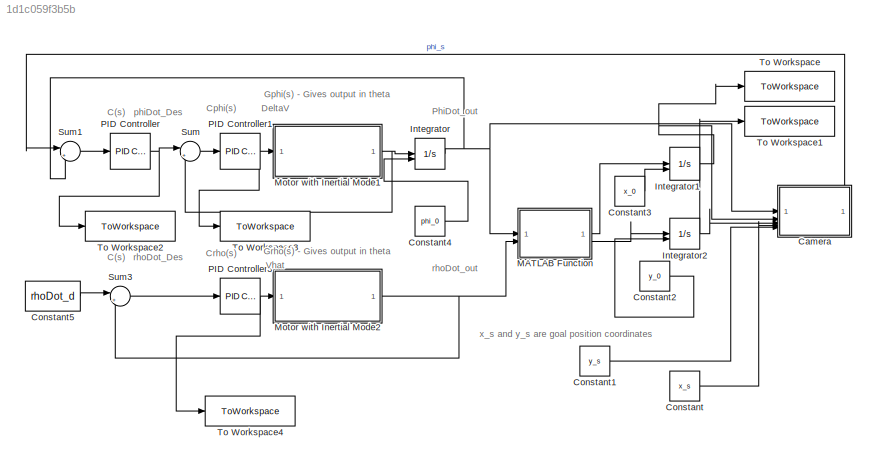
MODEL slx_1d1c059f3b5b
KIND model
CONFIG AbsTol = auto
CONFIG EnableMultiTasking = off
CONFIG FixedStep = auto
CONFIG MaxStep = auto
CONFIG MinStep = auto
CONFIG RelTol = 1e-3
CONFIG SampleTimeConstraint = Unconstrained
CONFIG SolverName = VariableStepAuto
CONFIG StartTime = 0.0
CONFIG StopTime = 10.0
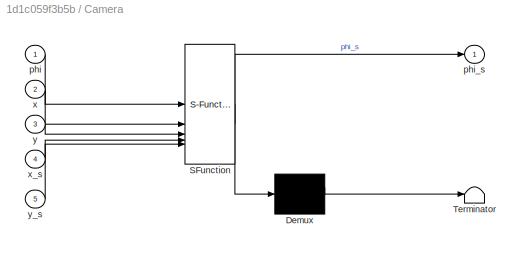
BLOCK [SubSystem] Camera
  ErrorFcn = Stateflow.Translate.translate
  PermitHierarchicalResolution = ExplicitOnly
  SFBlockType = MATLAB Function
  SystemSampleTime = .2
  TreatAsAtomicUnit = on
BLOCK [Demux] Camera/ Demux 
  Outputs = 1
BLOCK [S-Function] Camera/ SFunction 
  EnableBusSupport = on
  FunctionName = sf_sfun
  PortCounts = [5 2]
  SFcnIsStateOwnerBlock = off
  SFunctionDeploymentMode = off
  Tag = Stateflow S-Function 2
BLOCK [Terminator] Camera/ Terminator 
BLOCK [Inport] Camera/phi
BLOCK [Outport] Camera/phi_s
BLOCK [Inport] Camera/x
  Port = 2
BLOCK [Inport] Camera/x_s
  Port = 4
BLOCK [Inport] Camera/y
  Port = 3
BLOCK [Inport] Camera/y_s
  Port = 5
BLOCK [Constant] Constant
  Value = x_s
BLOCK [Constant] Constant1
  Value = y_s
BLOCK [Constant] Constant2
  Value = y_0
BLOCK [Constant] Constant3
  Value = x_0
BLOCK [Constant] Constant4
  Value = phi_0
BLOCK [Constant] Constant5
  Value = rhoDot_d
BLOCK [Integrator] Integrator
  InitialConditionSource = external
BLOCK [Integrator] Integrator1
  InitialConditionSource = external
BLOCK [Integrator] Integrator2
  InitialConditionSource = external
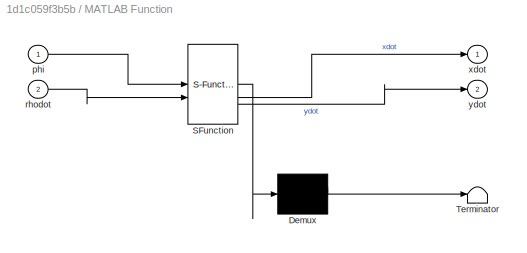
BLOCK [SubSystem] MATLAB Function
  ErrorFcn = Stateflow.Translate.translate
  LibrarySourceBlock = simulink/User-Defined\nFunctions/MATLAB Function
  PermitHierarchicalResolution = ExplicitOnly
  SFBlockType = MATLAB Function
  TreatAsAtomicUnit = on
BLOCK [Demux] MATLAB Function/ Demux 
  Outputs = 1
BLOCK [S-Function] MATLAB Function/ SFunction 
  EnableBusSupport = on
  FunctionName = sf_sfun
  PortCounts = [2 3]
  SFcnIsStateOwnerBlock = off
  SFunctionDeploymentMode = off
  Tag = Stateflow S-Function 1
BLOCK [Terminator] MATLAB Function/ Terminator 
BLOCK [Inport] MATLAB Function/phi
BLOCK [Inport] MATLAB Function/rhodot
  Port = 2
BLOCK [Outport] MATLAB Function/xdot
BLOCK [Outport] MATLAB Function/ydot
  Port = 2
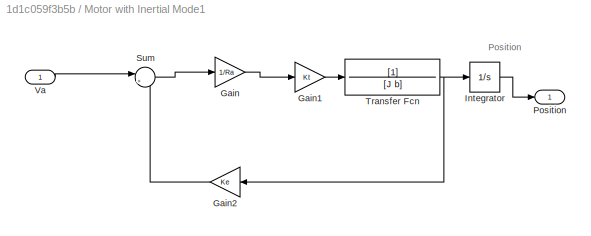
BLOCK [SubSystem] Motor with Inertial Mode1
BLOCK [Gain] Motor with Inertial Mode1/Gain
  Gain = 1/Ra
BLOCK [Gain] Motor with Inertial Mode1/Gain1
  Gain = Kt
BLOCK [Gain] Motor with Inertial Mode1/Gain2
  Gain = Ke
BLOCK [Integrator] Motor with Inertial Mode1/Integrator
BLOCK [Outport] Motor with Inertial Mode1/Position
BLOCK [Sum] Motor with Inertial Mode1/Sum
  Inputs = |+-
BLOCK [TransferFcn] Motor with Inertial Mode1/Transfer Fcn
  Denominator = [J b]
BLOCK [Inport] Motor with Inertial Mode1/Va
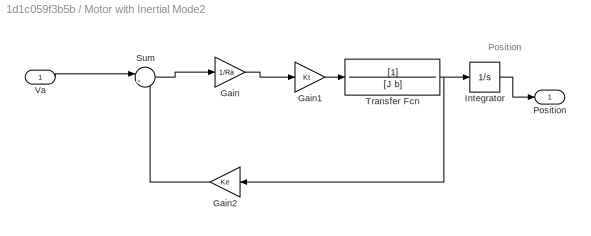
BLOCK [SubSystem] Motor with Inertial Mode2
BLOCK [Gain] Motor with Inertial Mode2/Gain
  Gain = 1/Ra
BLOCK [Gain] Motor with Inertial Mode2/Gain1
  Gain = Kt
BLOCK [Gain] Motor with Inertial Mode2/Gain2
  Gain = Ke
BLOCK [Integrator] Motor with Inertial Mode2/Integrator
BLOCK [Outport] Motor with Inertial Mode2/Position
BLOCK [Sum] Motor with Inertial Mode2/Sum
  Inputs = |+-
BLOCK [TransferFcn] Motor with Inertial Mode2/Transfer Fcn
  Denominator = [J b]
BLOCK [Inport] Motor with Inertial Mode2/Va
BLOCK [Reference] PID Controller  REF=slpidlib/PID Controller
  SourceBlock = slpidlib/PID Controller
  SourceType = PID 1dof
BLOCK [Reference] PID Controller1  REF=slpidlib/PID Controller
  SourceBlock = slpidlib/PID Controller
  SourceType = PID 1dof
BLOCK [Reference] PID Controller3  REF=slpidlib/PID Controller
  SourceBlock = slpidlib/PID Controller
  SourceType = PID 1dof
BLOCK [Sum] Sum
  Inputs = |+-
BLOCK [Sum] Sum1
  Inputs = |+-
BLOCK [Sum] Sum3
  Inputs = |+-
BLOCK [ToWorkspace] To Workspace
  FixptAsFi = on
  MaxDataPoints = inf
  SampleTime = -1
  SaveFormat = Timeseries
  VariableName = posx
BLOCK [ToWorkspace] To Workspace1
  FixptAsFi = on
  MaxDataPoints = inf
  SampleTime = -1
  SaveFormat = Timeseries
  VariableName = posy
BLOCK [ToWorkspace] To Workspace2
  FixptAsFi = on
  MaxDataPoints = inf
  SampleTime = -1
  SaveFormat = Timeseries
  VariableName = phi_Des
BLOCK [ToWorkspace] To Workspace3
  FixptAsFi = on
  MaxDataPoints = inf
  SampleTime = -1
  SaveFormat = Timeseries
  VariableName = phiDot_Des
BLOCK [ToWorkspace] To Workspace4
  FixptAsFi = on
  MaxDataPoints = inf
  SampleTime = -1
  SaveFormat = Timeseries
  VariableName = rhoDot_des
ANNOTATION (root): C(s)
ANNOTATION (root): Cphi(s)
ANNOTATION (root): Crho(s)
ANNOTATION (root): DeltaV
ANNOTATION (root): Gphi(s) - Gives output in theta
ANNOTATION (root): Grho(s) - Gives output in theta
ANNOTATION (root): PhiDot_out
ANNOTATION (root): Vhat
ANNOTATION (root): phiDot_Des
ANNOTATION (root): rhoDot_Des
ANNOTATION (root): rhoDot_out
ANNOTATION (root): x_s and y_s are goal position coordinates
ANNOTATION Motor with Inertial Mode1: Position
ANNOTATION Motor with Inertial Mode2: Position
LINE Camera:1 -> Sum1:1
LINE Constant1:1 -> Camera:5
LINE Constant2:1 -> Integrator2:2
LINE Constant3:1 -> Integrator1:2
LINE Constant4:1 -> Integrator:2
LINE Constant5:1 -> Sum3:1
LINE Constant:1 -> Camera:4
NET Integrator1:1 -> Camera:2, To Workspace:1
NET Integrator2:1 -> Camera:3, To Workspace1:1
NET Integrator:1 -> Camera:1, MATLAB Function:1, Sum1:2
LINE MATLAB Function:1 -> Integrator1:1
LINE MATLAB Function:2 -> Integrator2:1
LINE Motor with Inertial Mode1/Gain1:1 -> Motor with Inertial Mode1/Transfer Fcn:1
LINE Motor with Inertial Mode1/Gain2:1 -> Motor with Inertial Mode1/Sum:2
LINE Motor with Inertial Mode1/Gain:1 -> Motor with Inertial Mode1/Gain1:1
LINE Motor with Inertial Mode1/Integrator:1 -> Motor with Inertial Mode1/Position:1
LINE Motor with Inertial Mode1/Sum:1 -> Motor with Inertial Mode1/Gain:1
NET Motor with Inertial Mode1/Transfer Fcn:1 -> Motor with Inertial Mode1/Gain2:1, Motor with Inertial Mode1/Integrator:1
LINE Motor with Inertial Mode1/Va:1 -> Motor with Inertial Mode1/Sum:1
NET Motor with Inertial Mode1:1 -> Integrator:1, Sum:2
LINE Motor with Inertial Mode2/Gain1:1 -> Motor with Inertial Mode2/Transfer Fcn:1
LINE Motor with Inertial Mode2/Gain2:1 -> Motor with Inertial Mode2/Sum:2
LINE Motor with Inertial Mode2/Gain:1 -> Motor with Inertial Mode2/Gain1:1
LINE Motor with Inertial Mode2/Integrator:1 -> Motor with Inertial Mode2/Position:1
LINE Motor with Inertial Mode2/Sum:1 -> Motor with Inertial Mode2/Gain:1
NET Motor with Inertial Mode2/Transfer Fcn:1 -> Motor with Inertial Mode2/Gain2:1, Motor with Inertial Mode2/Integrator:1
LINE Motor with Inertial Mode2/Va:1 -> Motor with Inertial Mode2/Sum:1
NET Motor with Inertial Mode2:1 -> MATLAB Function:2, Sum3:2
NET PID Controller1:1 -> Motor with Inertial Mode1:1, To Workspace3:1
NET PID Controller3:1 -> Motor with Inertial Mode2:1, To Workspace4:1
NET PID Controller:1 -> Sum:1, To Workspace2:1
LINE Sum1:1 -> PID Controller:1
LINE Sum3:1 -> PID Controller3:1
LINE Sum:1 -> PID Controller1:1
note: NET lines group one-source signal fan-out (src -> all destinations, sorted); 1:1 wires keep LINE
CHART MATLAB Function states=1 transitions=1
  STATE_LABEL 'eML_blk_kernel()'
  STATE_LABEL 'SCRIPT:\nfunction [xdot,ydot]= fcn(phi,rhodot)\n\nxdot=rhodot*cos(phi*pi/180);\nydot=rhodot*sin(phi*pi/180);\n'
CHART Camera states=1 transitions=1
  STATE_LABEL 'eML_blk_kernel()'
  STATE_LABEL 'SCRIPT:\nfunction phi_s = fcn(phi,x,y,x_s,y_s)\n%#codegen\n%\n% Simulation of Camera with line detection\n% phi - angle of robot in degrees\n% x - x position of robot in feet\n% y - y position of robot in feet\n% x_s - vector of x coordinates for line to be detected (in feet)\n% y_s - vector of y coordinates for line to be detected (in feet)\n%\n%\n\n% change show_image to 1 to see camera image during simulati...<+2767ch>'
CHART  states=0 transitions=0
CHART  states=0 transitions=0
